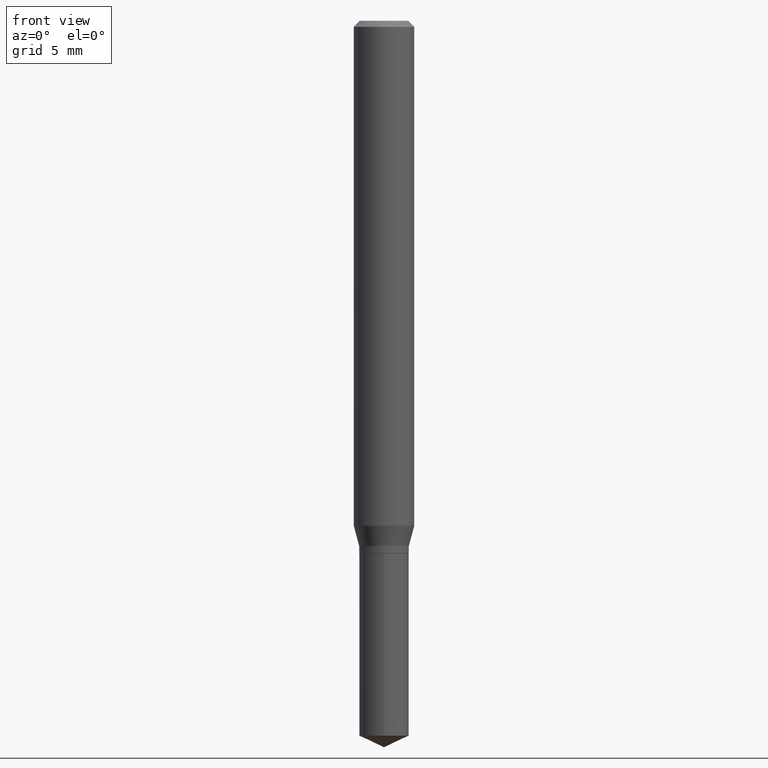
[diagram: clean part render]
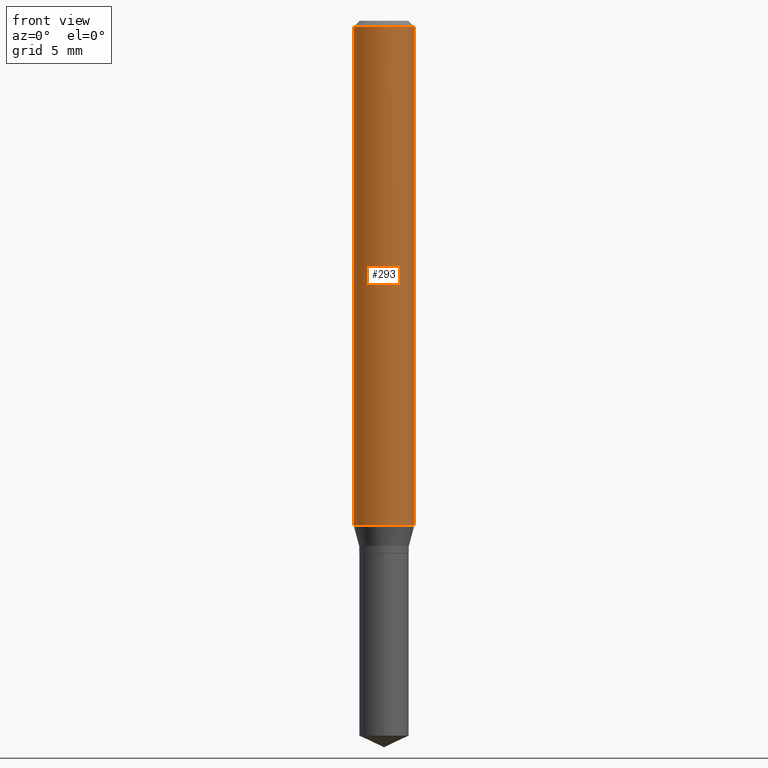
[diagram: same view with one face highlighted and labeled with its STEP entity id]
A machine part, front view. The second image highlights one B-rep face of the part: STEP entity #293.
In plain terms, the highlighted cylindrical surface (edge-blend (fillet) strip) has radius 1.5875 mm, axis along (-0, 0, 1).
Its self-contained STEP definition (entity closure, byte-faithful):
#5 = VERTEX_POINT ( 'NONE', #465 ) ;
#20 = CARTESIAN_POINT ( 'NONE',  ( 0.06250000000000006939, -4.364351673553921624E-16, 3.047610484872463374E-30 ) ) ;
#37 = DIRECTION ( 'NONE',  ( -2.445468806185136597E-29, 3.491481338843145583E-15, 1.000000000000000000 ) ) ;
#38 = AXIS2_PLACEMENT_3D ( 'NONE', #107, #338, #380 ) ;
#45 = EDGE_CURVE ( 'NONE', #5, #158, #127, .T. ) ;
#59 = VERTEX_POINT ( 'NONE', #246 ) ;
#68 = CIRCLE ( 'NONE', #203, 0.06250000000000000000 ) ;
#86 = ORIENTED_EDGE ( 'NONE', *, *, #45, .F. ) ;
#96 = CYLINDRICAL_SURFACE ( 'NONE', #213, 0.06250000000000006939 ) ;
#107 = CARTESIAN_POINT ( 'NONE',  ( 2.549224730875411366E-29, -3.639617301131549436E-15, -1.042427825874471470 ) ) ;
#127 = LINE ( 'NONE', #310, #407 ) ;
#131 = DIRECTION ( 'NONE',  ( -2.445468806185136877E-29, 3.491481338843145188E-15, 1.000000000000000000 ) ) ;
#148 = ORIENTED_EDGE ( 'NONE', *, *, #431, .T. ) ;
#158 = VERTEX_POINT ( 'NONE', #472 ) ;
#162 = FACE_OUTER_BOUND ( 'NONE', #268, .T. ) ;
#203 = AXIS2_PLACEMENT_3D ( 'NONE', #286, #37, #211 ) ;
#205 = ORIENTED_EDGE ( 'NONE', *, *, #236, .F. ) ;
#211 = DIRECTION ( 'NONE',  ( 1.000000000000000000, -6.982962677686266711E-15, 0.000000000000000000 ) ) ;
#213 = AXIS2_PLACEMENT_3D ( 'NONE', #313, #469, #242 ) ;
#236 = EDGE_CURVE ( 'NONE', #158, #393, #68, .T. ) ;
#242 = DIRECTION ( 'NONE',  ( 1.000000000000000000, -6.982962677686266711E-15, 4.876176775795935793E-29 ) ) ;
#246 = CARTESIAN_POINT ( 'NONE',  ( 0.06250000000000012490, -4.076052468486941894E-15, -1.042427825874471470 ) ) ;
#268 = EDGE_LOOP ( 'NONE', ( #86, #148, #398, #205 ) ) ;
#272 = EDGE_CURVE ( 'NONE', #59, #393, #406, .T. ) ;
#286 = CARTESIAN_POINT ( 'NONE',  ( 3.056836007731442729E-31, -4.364351673553962300E-17, -0.01250000000000008916 ) ) ;
#292 = CARTESIAN_POINT ( 'NONE',  ( 0.06250000000000000000, -4.800786840909313294E-16, -0.01250000000000008916 ) ) ;
#293 = ADVANCED_FACE ( 'NONE', ( #162 ), #96, .T. ) ;
#310 = CARTESIAN_POINT ( 'NONE',  ( -0.06250000000000006939, 4.440892098500631092E-16, -3.074334431409319267E-30 ) ) ;
#313 = CARTESIAN_POINT ( 'NONE',  ( 0.000000000000000000, 0.000000000000000000, 0.000000000000000000 ) ) ;
#338 = DIRECTION ( 'NONE',  ( -2.445468806185136597E-29, 3.491481338843145583E-15, 1.000000000000000000 ) ) ;
#346 = VECTOR ( 'NONE', #357, 39.37007874015748143 ) ;
#357 = DIRECTION ( 'NONE',  ( -2.445468806185136877E-29, 3.491481338843145188E-15, 1.000000000000000000 ) ) ;
#380 = DIRECTION ( 'NONE',  ( 1.000000000000000000, -6.982962677686264344E-15, 0.000000000000000000 ) ) ;
#393 = VERTEX_POINT ( 'NONE', #292 ) ;
#398 = ORIENTED_EDGE ( 'NONE', *, *, #272, .T. ) ;
#406 = LINE ( 'NONE', #20, #346 ) ;
#407 = VECTOR ( 'NONE', #131, 39.37007874015748143 ) ;
#431 = EDGE_CURVE ( 'NONE', #5, #59, #490, .T. ) ;
#465 = CARTESIAN_POINT ( 'NONE',  ( -0.06250000000000012490, -3.195528091281486031E-15, -1.042427825874471470 ) ) ;
#469 = DIRECTION ( 'NONE',  ( -2.445468806185136597E-29, 3.491481338843145583E-15, 1.000000000000000000 ) ) ;
#472 = CARTESIAN_POINT ( 'NONE',  ( -0.06250000000000000000, -1.397541199083480699E-15, -0.01250000000000008916 ) ) ;
#490 = CIRCLE ( 'NONE', #38, 0.06250000000000012490 ) ;